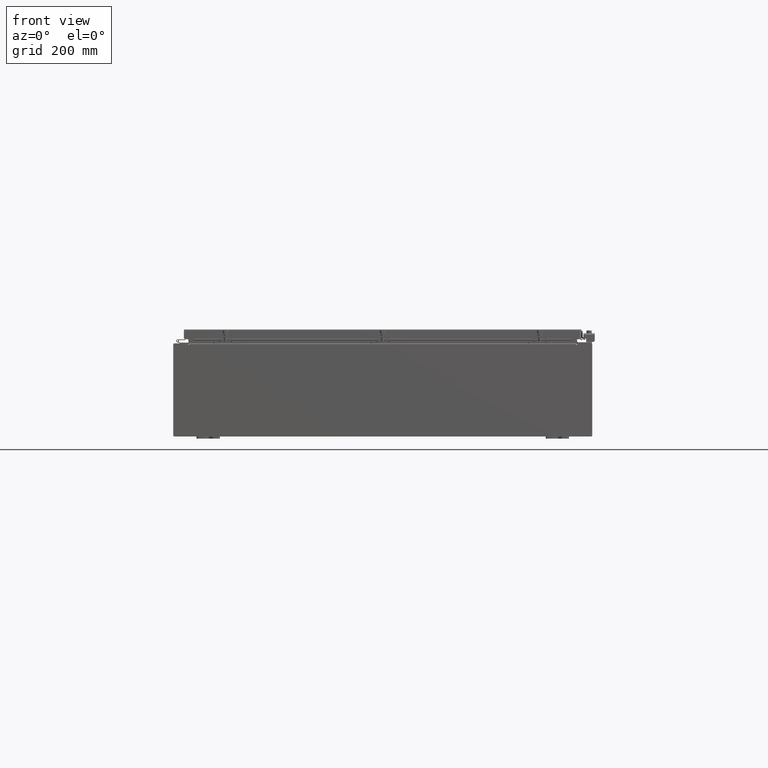
[diagram: clean part render]
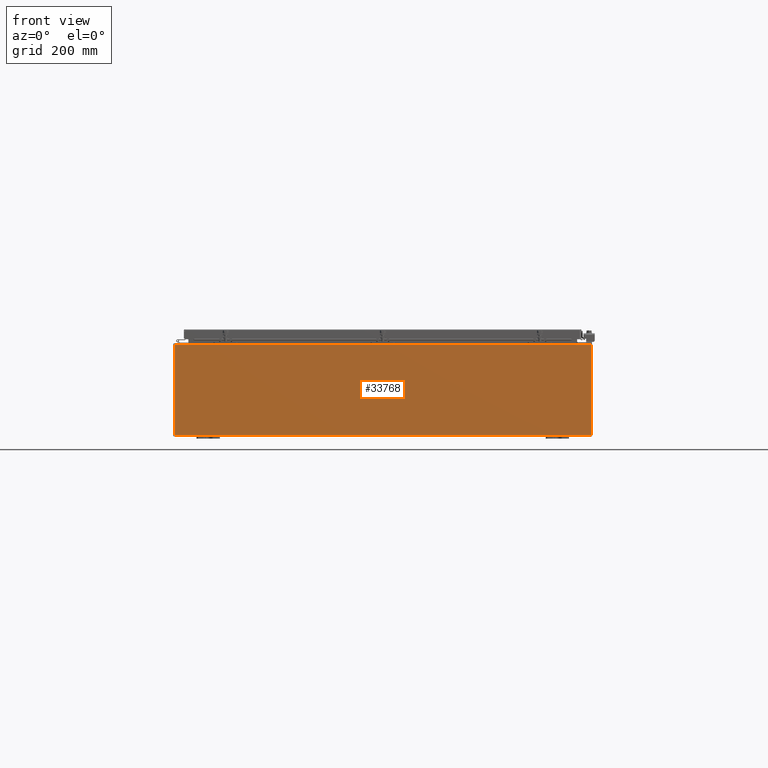
[diagram: same view with one face highlighted and labeled with its STEP entity id]
A machine part, front view. The second image highlights one B-rep face of the part: STEP entity #33768.
In plain terms, the highlighted planar face has unit normal (-0, 1, -0).
Its self-contained STEP definition (entity closure, byte-faithful):
#390 = CARTESIAN_POINT ( 'NONE',  ( -16.67454999999999600, -0.0000000000000000000, 0.0000000000000000000 ) ) ;
#480 = VERTEX_POINT ( 'NONE', #21276 ) ;
#531 = CARTESIAN_POINT ( 'NONE',  ( 17.92530000000000400, 0.0000000000000000000, -3.925299999999999100 ) ) ;
#732 = EDGE_CURVE ( 'NONE', #480, #25369, #16285, .T. ) ;
#2251 = DIRECTION ( 'NONE',  ( 0.0000000000000000000, 0.0000000000000000000, -1.000000000000000000 ) ) ;
#4567 = EDGE_CURVE ( 'NONE', #480, #29630, #12406, .T. ) ;
#4802 = CARTESIAN_POINT ( 'NONE',  ( -16.65587499999999800, 0.0000000000000000000, 3.874950000000000100 ) ) ;
#5301 = VERTEX_POINT ( 'NONE', #52575 ) ;
#5334 = VERTEX_POINT ( 'NONE', #47526 ) ;
#5472 = CARTESIAN_POINT ( 'NONE',  ( 16.63720000000000700, 0.0000000000000000000, 3.874950000000000100 ) ) ;
#6140 = EDGE_CURVE ( 'NONE', #39817, #38953, #19402, .T. ) ;
#6761 = EDGE_CURVE ( 'NONE', #37002, #15742, #25176, .T. ) ;
#7148 = ORIENTED_EDGE ( 'NONE', *, *, #4567, .F. ) ;
#7775 = VERTEX_POINT ( 'NONE', #11250 ) ;
#8438 = CARTESIAN_POINT ( 'NONE',  ( -17.92529999999999600, 0.0000000000000000000, 3.925300000000000500 ) ) ;
#8531 = DIRECTION ( 'NONE',  ( 1.000000000000000000, 0.0000000000000000000, 0.0000000000000000000 ) ) ;
#8790 = CARTESIAN_POINT ( 'NONE',  ( -16.63719999999999600, -0.0000000000000000000, 0.0000000000000000000 ) ) ;
#8993 = DIRECTION ( 'NONE',  ( 0.0000000000000000000, 0.0000000000000000000, -1.000000000000000000 ) ) ;
#9491 = ORIENTED_EDGE ( 'NONE', *, *, #17098, .F. ) ;
#11039 = VERTEX_POINT ( 'NONE', #28792 ) ;
#11250 = CARTESIAN_POINT ( 'NONE',  ( 17.92530000000000400, 0.0000000000000000000, 3.925300000000000500 ) ) ;
#11843 = DIRECTION ( 'NONE',  ( 0.0000000000000000000, 0.0000000000000000000, -1.000000000000000000 ) ) ;
#11935 = ORIENTED_EDGE ( 'NONE', *, *, #15822, .T. ) ;
#11999 = CARTESIAN_POINT ( 'NONE',  ( -17.92529999999999600, 0.0000000000000000000, 3.925300000000000500 ) ) ;
#12406 = LINE ( 'NONE', #8790, #33247 ) ;
#12529 = VECTOR ( 'NONE', #8531, 39.37007874015748100 ) ;
#13953 = EDGE_CURVE ( 'NONE', #32263, #5301, #35453, .T. ) ;
#14402 = CIRCLE ( 'NONE', #49880, 0.01867499999999949400 ) ;
#14551 = ORIENTED_EDGE ( 'NONE', *, *, #17339, .T. ) ;
#14673 = ORIENTED_EDGE ( 'NONE', *, *, #732, .T. ) ;
#15742 = VERTEX_POINT ( 'NONE', #43915 ) ;
#15822 = EDGE_CURVE ( 'NONE', #5334, #7775, #45767, .T. ) ;
#16285 = LINE ( 'NONE', #22987, #48191 ) ;
#16478 = EDGE_CURVE ( 'NONE', #29630, #32263, #14402, .T. ) ;
#17080 = DIRECTION ( 'NONE',  ( 0.0000000000000000000, -1.000000000000000000, 0.0000000000000000000 ) ) ;
#17098 = EDGE_CURVE ( 'NONE', #5334, #39817, #37156, .T. ) ;
#17339 = EDGE_CURVE ( 'NONE', #15742, #11039, #33835, .T. ) ;
#18158 = LINE ( 'NONE', #8438, #48740 ) ;
#19402 = CIRCLE ( 'NONE', #28904, 0.01867499999999949400 ) ;
#20610 = EDGE_CURVE ( 'NONE', #11039, #5301, #18158, .T. ) ;
#20783 = EDGE_CURVE ( 'NONE', #38953, #25369, #29833, .T. ) ;
#21276 = CARTESIAN_POINT ( 'NONE',  ( -16.63719999999999600, 3.756290991288361700E-016, 3.912300000000000100 ) ) ;
#21788 = ORIENTED_EDGE ( 'NONE', *, *, #41352, .T. ) ;
#22088 = CARTESIAN_POINT ( 'NONE',  ( -17.92529999999999600, 0.0000000000000000000, -3.925299999999999100 ) ) ;
#22200 = DIRECTION ( 'NONE',  ( -1.000000000000000000, -0.0000000000000000000, -0.0000000000000000000 ) ) ;
#22751 = VECTOR ( 'NONE', #49496, 39.37007874015748100 ) ;
#22987 = CARTESIAN_POINT ( 'NONE',  ( -16.63719999999999600, 3.756290991288361700E-016, 3.912300000000000100 ) ) ;
#23502 = ORIENTED_EDGE ( 'NONE', *, *, #20610, .T. ) ;
#24158 = CARTESIAN_POINT ( 'NONE',  ( 16.67455000000000700, 0.0000000000000000000, 3.874950000000000100 ) ) ;
#24381 = VECTOR ( 'NONE', #25357, 39.37007874015748100 ) ;
#25106 = ORIENTED_EDGE ( 'NONE', *, *, #13953, .F. ) ;
#25176 = LINE ( 'NONE', #22088, #47357 ) ;
#25357 = DIRECTION ( 'NONE',  ( 0.0000000000000000000, 0.0000000000000000000, 1.000000000000000000 ) ) ;
#25369 = VERTEX_POINT ( 'NONE', #39362 ) ;
#25517 = DIRECTION ( 'NONE',  ( -8.681145560800009800E-014, 0.0000000000000000000, -1.000000000000000000 ) ) ;
#25993 = DIRECTION ( 'NONE',  ( 1.000000000000000000, 0.0000000000000000000, 0.0000000000000000000 ) ) ;
#26067 = VECTOR ( 'NONE', #25517, 39.37007874015748100 ) ;
#28018 = EDGE_LOOP ( 'NONE', ( #25106, #48347, #7148, #14673, #38082, #30665, #9491, #11935, #21788, #31108, #14551, #23502 ) ) ;
#28792 = CARTESIAN_POINT ( 'NONE',  ( -17.92529999999999600, 0.0000000000000000000, 3.925300000000000500 ) ) ;
#28904 = AXIS2_PLACEMENT_3D ( 'NONE', #52812, #52664, #52617 ) ;
#29630 = VERTEX_POINT ( 'NONE', #36144 ) ;
#29833 = LINE ( 'NONE', #34650, #50683 ) ;
#30665 = ORIENTED_EDGE ( 'NONE', *, *, #6140, .F. ) ;
#31108 = ORIENTED_EDGE ( 'NONE', *, *, #6761, .T. ) ;
#32263 = VERTEX_POINT ( 'NONE', #50262 ) ;
#33247 = VECTOR ( 'NONE', #11843, 39.37007874015748100 ) ;
#33768 = ADVANCED_FACE ( 'NONE', ( #51742 ), #46012, .F. ) ;
#33835 = LINE ( 'NONE', #11999, #22751 ) ;
#33941 = DIRECTION ( 'NONE',  ( -0.0000000000000000000, 1.000000000000000000, -0.0000000000000000000 ) ) ;
#34650 = CARTESIAN_POINT ( 'NONE',  ( 16.63720000000000700, 0.0000000000000000000, 0.0000000000000000000 ) ) ;
#35453 = LINE ( 'NONE', #390, #24381 ) ;
#36144 = CARTESIAN_POINT ( 'NONE',  ( -16.63719999999999600, -0.0000000000000000000, 3.874950000000000100 ) ) ;
#37002 = VERTEX_POINT ( 'NONE', #531 ) ;
#37156 = LINE ( 'NONE', #50427, #26067 ) ;
#38082 = ORIENTED_EDGE ( 'NONE', *, *, #20783, .F. ) ;
#38831 = DIRECTION ( 'NONE',  ( 0.0000000000000000000, 0.0000000000000000000, 1.000000000000000000 ) ) ;
#38953 = VERTEX_POINT ( 'NONE', #5472 ) ;
#39362 = CARTESIAN_POINT ( 'NONE',  ( 16.63720000000000700, 0.0000000000000000000, 3.912300000000000100 ) ) ;
#39817 = VERTEX_POINT ( 'NONE', #24158 ) ;
#41352 = EDGE_CURVE ( 'NONE', #7775, #37002, #46407, .T. ) ;
#42017 = CARTESIAN_POINT ( 'NONE',  ( 0.0000000000000000000, 0.0000000000000000000, 0.0000000000000000000 ) ) ;
#43771 = VECTOR ( 'NONE', #2251, 39.37007874015748100 ) ;
#43915 = CARTESIAN_POINT ( 'NONE',  ( -17.92529999999999600, 0.0000000000000000000, -3.925299999999999100 ) ) ;
#45767 = LINE ( 'NONE', #45864, #12529 ) ;
#45864 = CARTESIAN_POINT ( 'NONE',  ( -17.92529999999999600, 0.0000000000000000000, 3.925300000000000500 ) ) ;
#46012 = PLANE ( 'NONE',  #49573 ) ;
#46203 = DIRECTION ( 'NONE',  ( 0.0000000000000000000, -0.0000000000000000000, -1.000000000000000000 ) ) ;
#46407 = LINE ( 'NONE', #52149, #43771 ) ;
#47357 = VECTOR ( 'NONE', #22200, 39.37007874015748100 ) ;
#47526 = CARTESIAN_POINT ( 'NONE',  ( 16.67455000000001100, 0.0000000000000000000, 3.925300000000000500 ) ) ;
#48191 = VECTOR ( 'NONE', #25993, 39.37007874015748100 ) ;
#48347 = ORIENTED_EDGE ( 'NONE', *, *, #16478, .F. ) ;
#48740 = VECTOR ( 'NONE', #50116, 39.37007874015748100 ) ;
#49496 = DIRECTION ( 'NONE',  ( -0.0000000000000000000, -0.0000000000000000000, 1.000000000000000000 ) ) ;
#49573 = AXIS2_PLACEMENT_3D ( 'NONE', #42017, #17080, #46203 ) ;
#49880 = AXIS2_PLACEMENT_3D ( 'NONE', #4802, #33941, #8993 ) ;
#50116 = DIRECTION ( 'NONE',  ( 1.000000000000000000, 0.0000000000000000000, 0.0000000000000000000 ) ) ;
#50262 = CARTESIAN_POINT ( 'NONE',  ( -16.67454999999999600, 0.0000000000000000000, 3.874950000000000100 ) ) ;
#50427 = CARTESIAN_POINT ( 'NONE',  ( 16.67454999999967000, -0.0000000000000000000, -1.447541957108349400E-012 ) ) ;
#50683 = VECTOR ( 'NONE', #38831, 39.37007874015748100 ) ;
#51742 = FACE_OUTER_BOUND ( 'NONE', #28018, .T. ) ;
#52149 = CARTESIAN_POINT ( 'NONE',  ( 17.92530000000000400, 0.0000000000000000000, 3.925300000000000500 ) ) ;
#52575 = CARTESIAN_POINT ( 'NONE',  ( -16.67454999999999600, 0.0000000000000000000, 3.925300000000000500 ) ) ;
#52617 = DIRECTION ( 'NONE',  ( 0.0000000000000000000, 0.0000000000000000000, -1.000000000000000000 ) ) ;
#52664 = DIRECTION ( 'NONE',  ( -0.0000000000000000000, 1.000000000000000000, -0.0000000000000000000 ) ) ;
#52812 = CARTESIAN_POINT ( 'NONE',  ( 16.65587500000000500, 0.0000000000000000000, 3.874950000000000100 ) ) ;